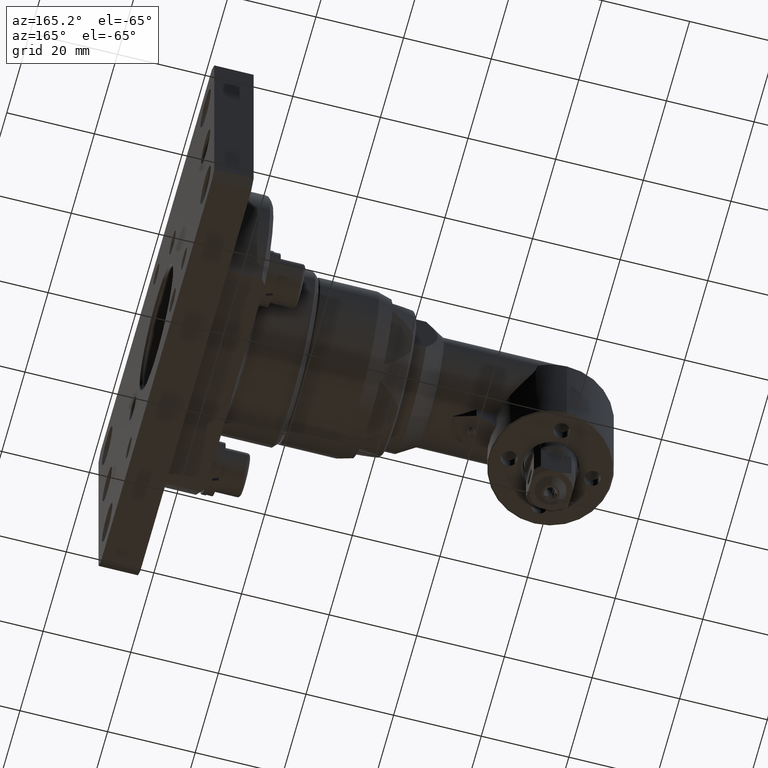
[diagram: clean part render]
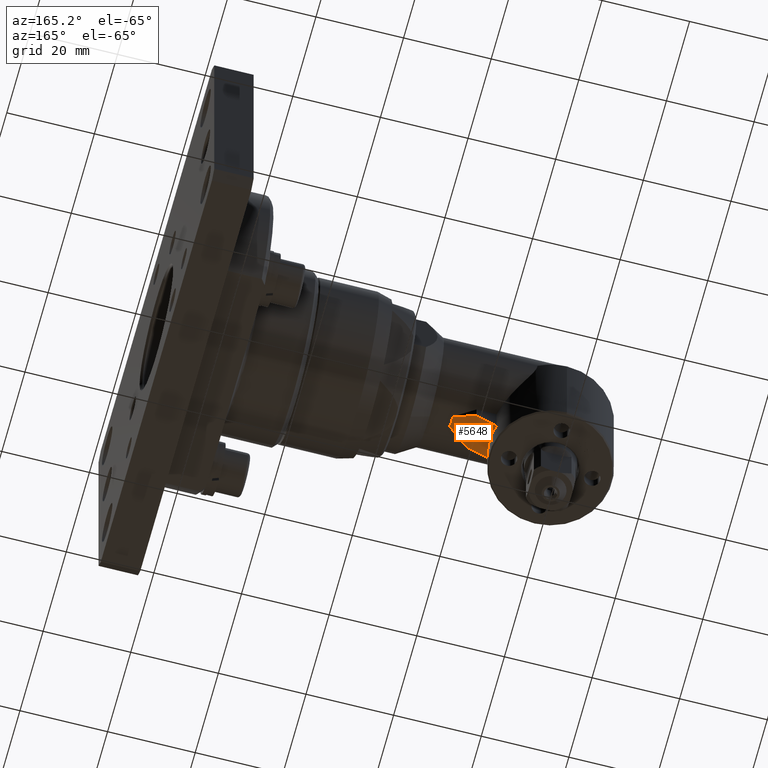
[diagram: same view with one face highlighted and labeled with its STEP entity id]
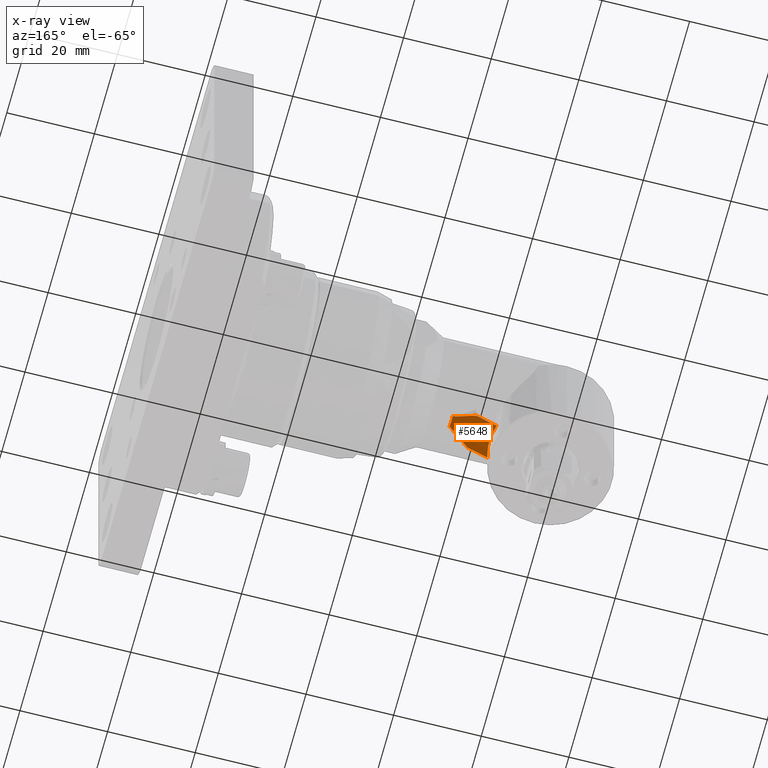
[diagram: x-ray of the same camera — body ghosted, the highlighted face saturated]
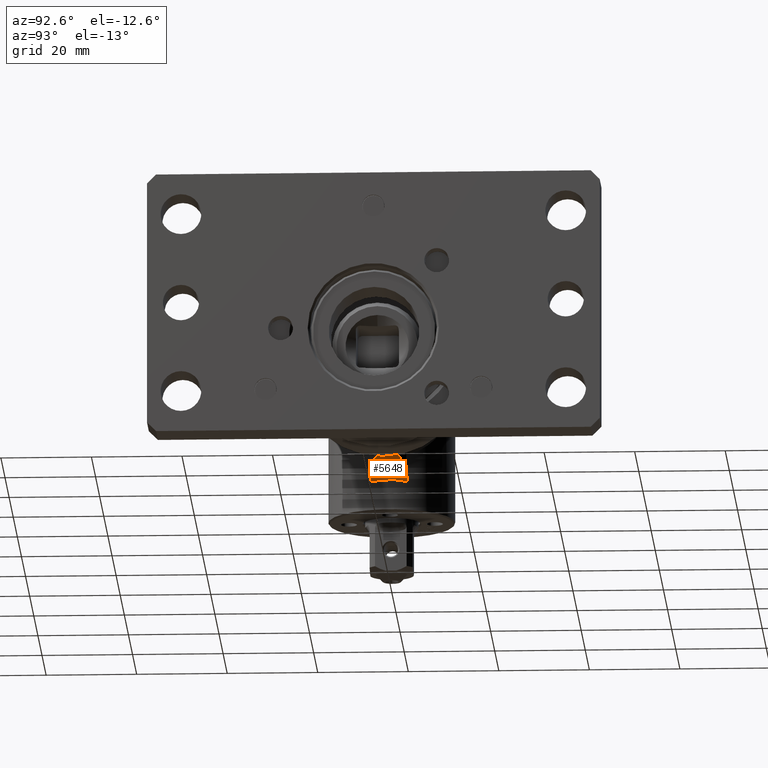
[diagram: same view with one face highlighted and labeled with its STEP entity id]
A machine part, auxiliary view. The second image highlights one B-rep face of the part: STEP entity #5648.
The next image is the same camera in x-ray: the body ghosted, the highlighted face saturated — about 0% of this face is hidden behind the body in this view.
A second angle (auxiliary view) of the same face is appended — the face is thin or edge-on in the first view.
In plain terms, the highlighted planar face has unit normal (0.5, -0, -0.866).
Its self-contained STEP definition (entity closure, byte-faithful):
#104=ELLIPSE('',#6216,25.,12.5);
#105=ELLIPSE('',#6217,25.,12.5);
#109=ELLIPSE('',#6223,16.1658075373095,14.);
#359=LINE('',#9895,#700);
#360=LINE('',#9897,#701);
#361=LINE('',#9901,#702);
#362=LINE('',#9902,#703);
#700=VECTOR('',#7442,10.);
#701=VECTOR('',#7443,10.);
#702=VECTOR('',#7446,10.);
#703=VECTOR('',#7447,10.);
#1010=FACE_BOUND('',#1538,.T.);
#1202=FACE_OUTER_BOUND('',#1537,.T.);
#1537=EDGE_LOOP('',(#4414,#4415,#4416,#4417,#4418,#4419,#4420));
#1538=EDGE_LOOP('',(#4421));
#1941=CIRCLE('',#6156,0.953939201416946);
#2393=VERTEX_POINT('',#9610);
#2447=VERTEX_POINT('',#9844);
#2448=VERTEX_POINT('',#9845);
#2449=VERTEX_POINT('',#9848);
#2456=VERTEX_POINT('',#9894);
#2457=VERTEX_POINT('',#9896);
#2458=VERTEX_POINT('',#9898);
#2459=VERTEX_POINT('',#9900);
#3088=EDGE_CURVE('',#2393,#2393,#1941,.T.);
#3165=EDGE_CURVE('',#2447,#2448,#104,.T.);
#3167=EDGE_CURVE('',#2448,#2449,#105,.T.);
#3178=EDGE_CURVE('',#2447,#2456,#359,.T.);
#3179=EDGE_CURVE('',#2457,#2456,#360,.T.);
#3180=EDGE_CURVE('',#2458,#2457,#109,.T.);
#3181=EDGE_CURVE('',#2459,#2458,#361,.T.);
#3182=EDGE_CURVE('',#2459,#2449,#362,.T.);
#4414=ORIENTED_EDGE('',*,*,#3178,.T.);
#4415=ORIENTED_EDGE('',*,*,#3179,.F.);
#4416=ORIENTED_EDGE('',*,*,#3180,.F.);
#4417=ORIENTED_EDGE('',*,*,#3181,.F.);
#4418=ORIENTED_EDGE('',*,*,#3182,.T.);
#4419=ORIENTED_EDGE('',*,*,#3167,.F.);
#4420=ORIENTED_EDGE('',*,*,#3165,.F.);
#4421=ORIENTED_EDGE('',*,*,#3088,.F.);
#5421=PLANE('',#6222);
#5648=ADVANCED_FACE('',(#1202,#1010),#5421,.T.);
#6156=AXIS2_PLACEMENT_3D('',#9611,#7287,#7288);
#6216=AXIS2_PLACEMENT_3D('',#9846,#7422,#7423);
#6217=AXIS2_PLACEMENT_3D('',#9849,#7425,#7426);
#6222=AXIS2_PLACEMENT_3D('',#9893,#7440,#7441);
#6223=AXIS2_PLACEMENT_3D('',#9899,#7444,#7445);
#7287=DIRECTION('center_axis',(0.499999999999987,-4.43373452382069E-13,
-0.866025403784446));
#7288=DIRECTION('ref_axis',(0.0858250596249314,0.995077256056309,0.0495511212771587));
#7422=DIRECTION('center_axis',(0.499999999999999,-4.41208517484095E-13,
-0.866025403784439));
#7423=DIRECTION('ref_axis',(0.866025403784439,1.56044077957873E-13,0.499999999999999));
#7425=DIRECTION('center_axis',(0.499999999999999,-4.41208517484095E-13,
-0.866025403784439));
#7426=DIRECTION('ref_axis',(0.866025403784439,1.56044077957873E-13,0.499999999999999));
#7440=DIRECTION('center_axis',(0.499999999999999,-4.41208517484095E-13,
-0.866025403784439));
#7441=DIRECTION('ref_axis',(-0.866025403784439,-1.56044077957873E-13,-0.499999999999999));
#7442=DIRECTION('',(-0.774596669241522,-0.447213595500098,-0.447213595499751));
#7443=DIRECTION('',(0.866025403784439,1.56044077957873E-13,0.499999999999999));
#7444=DIRECTION('center_axis',(0.499999999999999,-4.41208517484095E-13,
-0.866025403784439));
#7445=DIRECTION('ref_axis',(-0.866025403784439,-1.56044077957873E-13,-0.499999999999999));
#7446=DIRECTION('',(-0.866025403784439,-1.56044077957873E-13,-0.499999999999999));
#7447=DIRECTION('',(0.774596669241446,-0.447213595499818,0.447213595500163));
#9610=CARTESIAN_POINT('',(18.8220687281584,-0.0945375141155941,-14.7159773217466));
#9611=CARTESIAN_POINT('Origin',(17.999999999999,6.03133448120797E-12,-15.1905989232418));
#9844=CARTESIAN_POINT('',(22.7682647399192,-1.24704106883348,-12.4376399920811));
#9845=CARTESIAN_POINT('',(22.6602540378442,6.53806098404493E-12,-12.5000000000001));
#9846=CARTESIAN_POINT('Origin',(44.3108891324552,1.04406937414907E-11,-1.03891264091203E-13));
#9848=CARTESIAN_POINT('',(22.7682647399194,1.24704106884661,-12.4376399920822));
#9849=CARTESIAN_POINT('Origin',(44.3108891324552,1.04406937414907E-11,-1.03891264091203E-13));
#9893=CARTESIAN_POINT('Origin',(25.8564064605508,7.1154878986334E-12,-10.6547005383793));
#9894=CARTESIAN_POINT('',(17.9999999999994,-3.9999999999943,-15.1905989232397));
#9895=CARTESIAN_POINT('',(22.476663399431,-1.41539718126046,-12.6059961045079));
#9896=CARTESIAN_POINT('',(13.4164078649982,-3.99999999999513,-17.8369370762382));
#9897=CARTESIAN_POINT('',(25.8564064605504,-3.99999999999288,-10.6547005383775));
#9898=CARTESIAN_POINT('',(13.4164078649989,4.00000000000487,-17.8369370762418));
#9899=CARTESIAN_POINT('Origin',(-2.48689957516035E-13,2.45657248136125E-12,
-25.5829037686548));
#9900=CARTESIAN_POINT('',(18.0000000000001,4.0000000000057,-15.1905989232434));
#9901=CARTESIAN_POINT('',(25.8564064605511,4.00000000000712,-10.6547005383812));
#9902=CARTESIAN_POINT('',(20.5693575034635,2.51658075373711,-13.7071796769737));